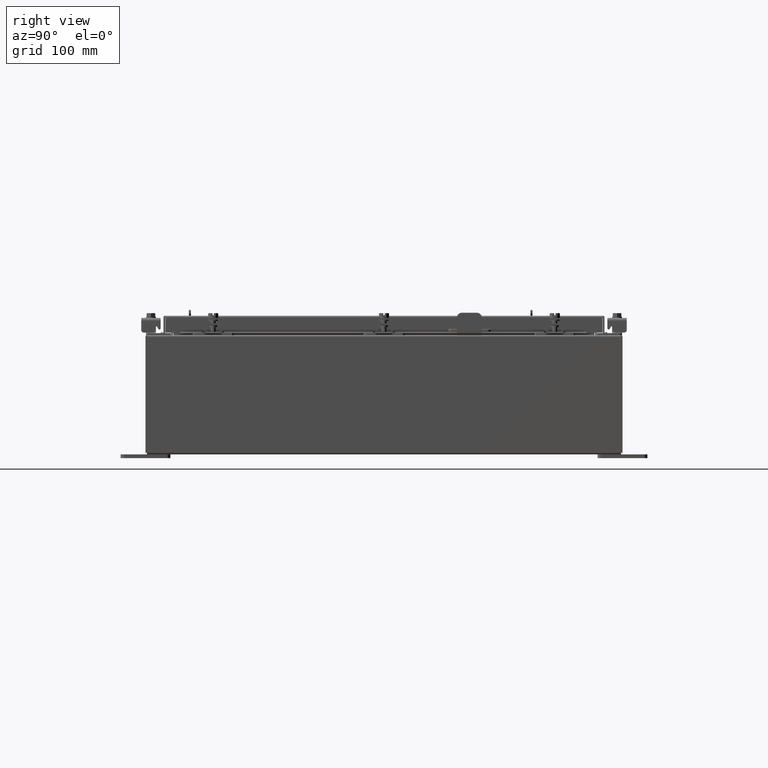
[diagram: clean part render]
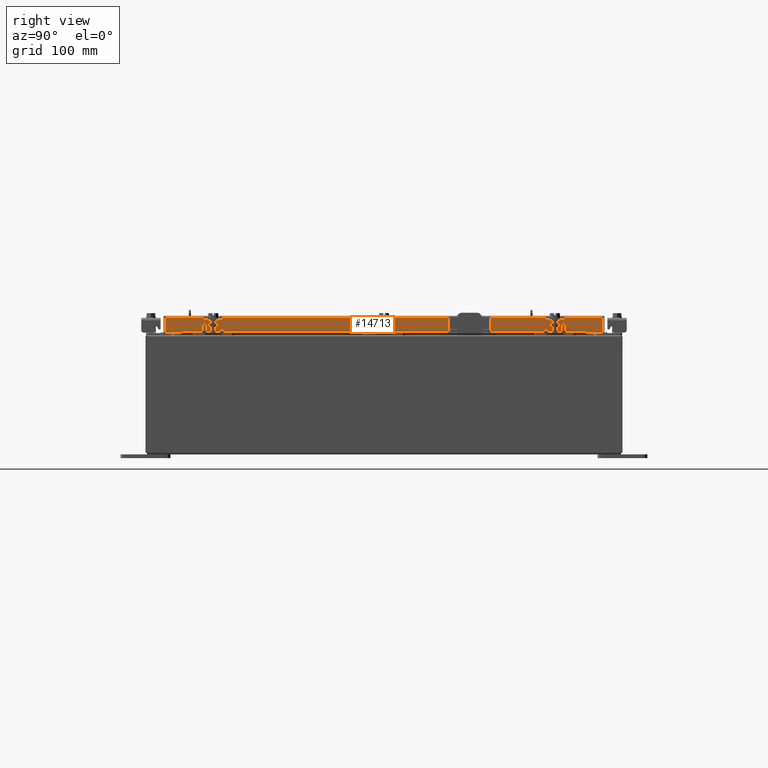
[diagram: same view with one face highlighted and labeled with its STEP entity id]
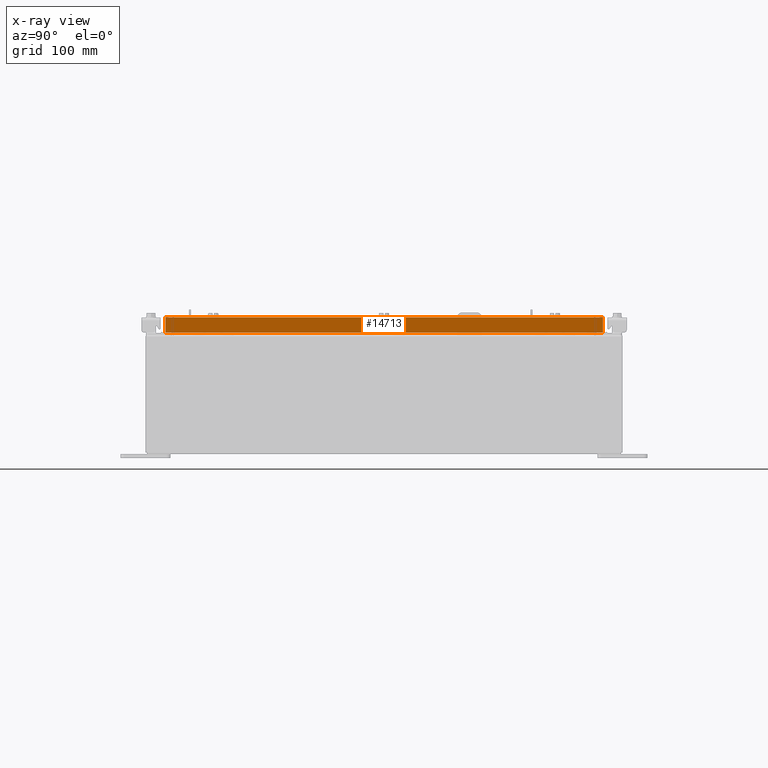
[diagram: x-ray of the same camera — body ghosted, the highlighted face saturated]
A machine part, right view. The second image highlights one B-rep face of the part: STEP entity #14713.
The next image is the same camera in x-ray: the body ghosted, the highlighted face saturated — about 0% of this face is hidden behind the body in this view.
In plain terms, the highlighted planar face has unit normal (1, 0, 0).
Its self-contained STEP definition (entity closure, byte-faithful):
#254 = LINE ( 'NONE', #5128, #17660 ) ;
#287 = CARTESIAN_POINT ( 'NONE',  ( 11.09399999999999400, 11.00515786437626400, -0.08770000000000026400 ) ) ;
#656 = FACE_OUTER_BOUND ( 'NONE', #6975, .T. ) ;
#764 = DIRECTION ( 'NONE',  ( -2.818880942772360100E-015, -6.982962677686267500E-015, 1.000000000000000000 ) ) ;
#1005 = CARTESIAN_POINT ( 'NONE',  ( 11.09399999999999400, 0.0000000000000000000, -0.08770000000000026400 ) ) ;
#1018 = ORIENTED_EDGE ( 'NONE', *, *, #10218, .F. ) ;
#1047 = EDGE_CURVE ( 'NONE', #1938, #5446, #20651, .T. ) ;
#1252 = CARTESIAN_POINT ( 'NONE',  ( 11.09399999999998500, -10.25515786437626400, -0.8500000000000020900 ) ) ;
#1332 = VECTOR ( 'NONE', #13567, 39.37007874015748100 ) ;
#1938 = VERTEX_POINT ( 'NONE', #20462 ) ;
#2004 = ORIENTED_EDGE ( 'NONE', *, *, #1047, .T. ) ;
#2593 = CARTESIAN_POINT ( 'NONE',  ( 11.09399999999999800, -11.09400000000000100, -0.8499999999999999800 ) ) ;
#2719 = DIRECTION ( 'NONE',  ( 0.0000000000000000000, -1.000000000000000000, 0.0000000000000000000 ) ) ;
#2990 = LINE ( 'NONE', #4178, #7053 ) ;
#3270 = VECTOR ( 'NONE', #2719, 39.37007874015748100 ) ;
#3282 = EDGE_CURVE ( 'NONE', #5446, #21207, #10354, .T. ) ;
#4178 = CARTESIAN_POINT ( 'NONE',  ( 11.09399999999999400, -11.00515786437626900, -0.07470000000000015500 ) ) ;
#4259 = VERTEX_POINT ( 'NONE', #1252 ) ;
#4678 = EDGE_CURVE ( 'NONE', #4259, #10271, #5915, .T. ) ;
#5128 = CARTESIAN_POINT ( 'NONE',  ( 11.09399999999998500, 10.25515786437627200, -0.8500000000000020900 ) ) ;
#5446 = VERTEX_POINT ( 'NONE', #287 ) ;
#5915 = LINE ( 'NONE', #11829, #1332 ) ;
#6867 = DIRECTION ( 'NONE',  ( 0.0000000000000000000, -1.000000000000000000, 0.0000000000000000000 ) ) ;
#6975 = EDGE_LOOP ( 'NONE', ( #1018, #11750, #12868, #10916, #2004, #10056 ) ) ;
#7053 = VECTOR ( 'NONE', #764, 39.37007874015748100 ) ;
#7491 = EDGE_CURVE ( 'NONE', #1938, #14898, #18786, .T. ) ;
#7717 = DIRECTION ( 'NONE',  ( -2.818880942772360100E-015, -6.982962677686267500E-015, 1.000000000000000000 ) ) ;
#8504 = DIRECTION ( 'NONE',  ( 1.000000000000000000, 0.0000000000000000000, 2.818880942772360100E-015 ) ) ;
#9487 = VECTOR ( 'NONE', #11271, 39.37007874015748100 ) ;
#10056 = ORIENTED_EDGE ( 'NONE', *, *, #3282, .T. ) ;
#10218 = EDGE_CURVE ( 'NONE', #10271, #21207, #2990, .T. ) ;
#10271 = VERTEX_POINT ( 'NONE', #11252 ) ;
#10354 = LINE ( 'NONE', #1005, #3270 ) ;
#10916 = ORIENTED_EDGE ( 'NONE', *, *, #7491, .F. ) ;
#11252 = CARTESIAN_POINT ( 'NONE',  ( 11.09399999999999800, -11.00515786437626400, -0.8499999999999999800 ) ) ;
#11271 = DIRECTION ( 'NONE',  ( 0.0000000000000000000, -1.000000000000000000, 0.0000000000000000000 ) ) ;
#11593 = AXIS2_PLACEMENT_3D ( 'NONE', #18947, #8504, #20703 ) ;
#11750 = ORIENTED_EDGE ( 'NONE', *, *, #4678, .F. ) ;
#11807 = EDGE_CURVE ( 'NONE', #14898, #4259, #254, .T. ) ;
#11829 = CARTESIAN_POINT ( 'NONE',  ( 11.09399999999999800, -11.09400000000000100, -0.8499999999999999800 ) ) ;
#12868 = ORIENTED_EDGE ( 'NONE', *, *, #11807, .F. ) ;
#13567 = DIRECTION ( 'NONE',  ( 0.0000000000000000000, -1.000000000000000000, 0.0000000000000000000 ) ) ;
#14632 = CARTESIAN_POINT ( 'NONE',  ( 11.09399999999998500, 10.25515786437627200, -0.8500000000000020900 ) ) ;
#14713 = ADVANCED_FACE ( 'NONE', ( #656 ), #15442, .T. ) ;
#14898 = VERTEX_POINT ( 'NONE', #14632 ) ;
#15085 = CARTESIAN_POINT ( 'NONE',  ( 11.09399999999999400, 11.00515786437626400, 1.081811805491048200E-013 ) ) ;
#15442 = PLANE ( 'NONE',  #11593 ) ;
#17660 = VECTOR ( 'NONE', #6867, 39.37007874015748100 ) ;
#18786 = LINE ( 'NONE', #2593, #9487 ) ;
#18947 = CARTESIAN_POINT ( 'NONE',  ( 11.09399999999999400, 0.0000000000000000000, 3.168943672650545400E-014 ) ) ;
#19572 = CARTESIAN_POINT ( 'NONE',  ( 11.09399999999999400, -11.00515786437626900, -0.08770000000000026400 ) ) ;
#20462 = CARTESIAN_POINT ( 'NONE',  ( 11.09399999999999800, 11.00515786437626900, -0.8499999999999999800 ) ) ;
#20651 = LINE ( 'NONE', #15085, #21187 ) ;
#20703 = DIRECTION ( 'NONE',  ( 2.818880942772360100E-015, 0.0000000000000000000, -1.000000000000000000 ) ) ;
#21187 = VECTOR ( 'NONE', #7717, 39.37007874015748100 ) ;
#21207 = VERTEX_POINT ( 'NONE', #19572 ) ;